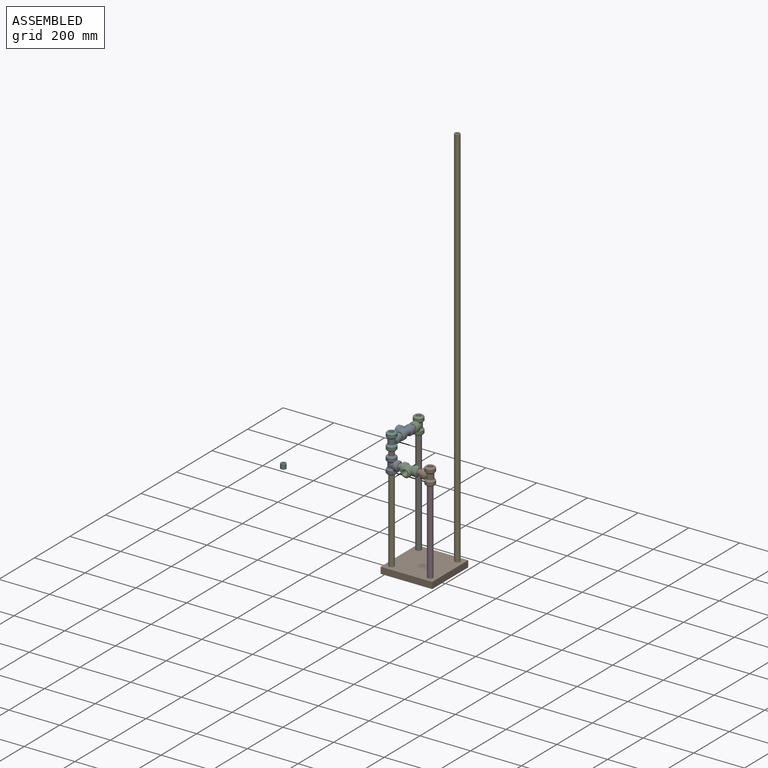
[diagram: assembled view]
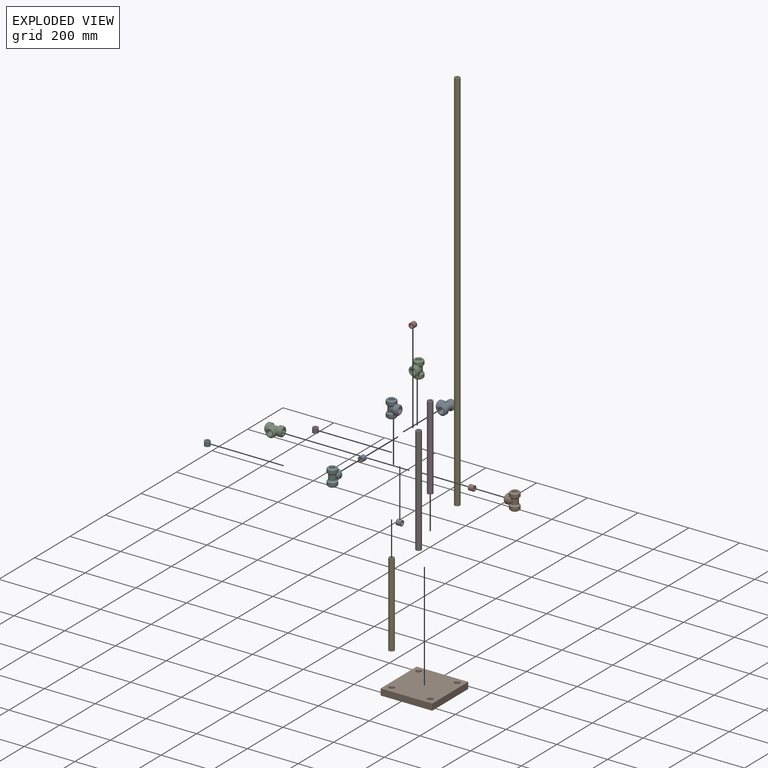
[diagram: exploded view]
GUIDED TOUR — MATED ASSEMBLY (Onshape document 9bde55a44d6da71420004861, AutoMate assembly 9bde55a44d6da71420004861_e16d18250e63d1b3d0beda56_8b6eeca9c53fa1a73b5b9f34_default)

This assembly has 17 components, labeled P0..P16 below (a component is one placed occurrence of a part; the same part can appear more than once), held together by 17 mates. A mate is a constraint between two components; its type names the relative motion it leaves free:
  FASTENED — locks the two components together rigidly (no relative motion),
  SLIDER — leaves translation along the listed axis free.
Axis/direction vectors are unit vectors and 'through' points are millimeter coordinates, both in the assembly's world frame.

MATES
  1. FASTENED "Fastened 10": P6 <-> P9, direction (0.000, 0.000, -1.000) through (575.70, 313.53, -287.02) mm
  2. SLIDER "Slider 2": P2 <-> P6, axis (0.000, 0.000, -1.000) through (575.70, 313.53, 125.73) mm
  3. FASTENED "Fastened 7": P3 <-> P8, direction (0.000, 0.000, -1.000) through (575.70, 161.13, 108.20) mm
  4. FASTENED "Fastened 5": P0 <-> P16, direction (0.000, -1.000, 0.000) through (575.70, 205.44, 159.27) mm
  5. FASTENED "Fastened 4": P1 <-> P11, direction (0.000, 0.000, -1.000) through (728.10, 161.13, 43.18) mm
  6. FASTENED "Fastened 2": P11 <-> P9, direction (0.000, 0.000, -1.000) through (728.10, 161.13, -287.02) mm
  7. SLIDER "Slider 3": P10 <-> P10, axis (0.000, -1.000, 0.000) through (650.67, 128.13, 76.18) mm
  8. FASTENED "Fastened 6": P15 <-> P0, direction (0.000, -1.000, 0.000) through (575.70, 271.44, 159.27) mm
  9. SLIDER "Slider 1": P16 <-> P5, axis (0.000, 1.000, 0.000) through (575.70, 186.39, 159.27) mm
  10. FASTENED "Fastened 12": P12 <-> P9, direction (0.000, 0.000, -1.000) through (728.10, 313.53, -287.02) mm
  11. FASTENED "Fastened 8": P5 <-> P3, direction (0.000, 0.000, -1.000) through (575.70, 161.13, 127.25) mm
  12. FASTENED "Fastened 5": P10 <-> P7, direction (1.000, 0.000, 0.000) through (683.67, 161.13, 76.18) mm
  13. FASTENED "Fastened 11": P2 <-> P6, direction (0.000, 0.000, -1.000) through (575.70, 313.53, 125.73) mm
  14. FASTENED "Fastened 1": P4 <-> P9, direction (0.000, 0.000, -1.000) through (575.70, 161.13, -287.02) mm
  15. FASTENED "Fastened 6": P14 <-> P10, direction (1.000, 0.000, 0.000) through (617.67, 161.13, 76.18) mm
  16. FASTENED "Fastened 9": P7 <-> P1, direction (-1.000, 0.000, 0.000) through (702.72, 161.13, 76.18) mm
  17. FASTENED "Fastened 3": P8 <-> P4, direction (0.000, 0.000, -1.000) through (575.70, 161.13, 43.18) mm

ASSEMBLY ORDER
  1. P6 — the base component [order verified]
  2. P2 [order verified]
  3. P15 [order verified]
  4. P8 [order verified]
  5. P14 [order verified]
  6. P4 [order verified]
  7. P0 [order verified]
  8. P16 [order verified]
  9. P10 [order verified]
  10. P11 [order verified]
  11. P7 [order verified]
  12. P1 [order verified]
  13. P3 [order verified]
  14. P5 [order verified]
  15. P12 [order verified]
  16. P9 [order verified]
  17. P13 [order verified]
(P2, P14, P15 verified with a relaxed clearance tolerance: the source model stores slight part interference there.)
Order-tag legend:
  [order verified] — this step's position reverses a verified removal order: the component was checked to insert without passing through the ones already placed.

Of the 17 components, 1 carries the full construction recipe — the FeatureScript program that regenerates the part's solid from scratch; the rest are supplied as boundary geometry only.
Because this assembly has more than 12 components, the tour below covers the 12 most significant ones individually (every recipe-attached component first, then the largest by part volume), in assembly order; the remaining 5 are summarized together in a grouped section at the end.
Each toured component is shown spotlighted twice — in the assembled view, then in the exploded view, where a leader line traces a displaced component back to its assembled socket (saturated green if recipe-attached, orange if geometry-only; every other component desaturated gray) — followed by its recipe or geometry summary and the mates that hold it.
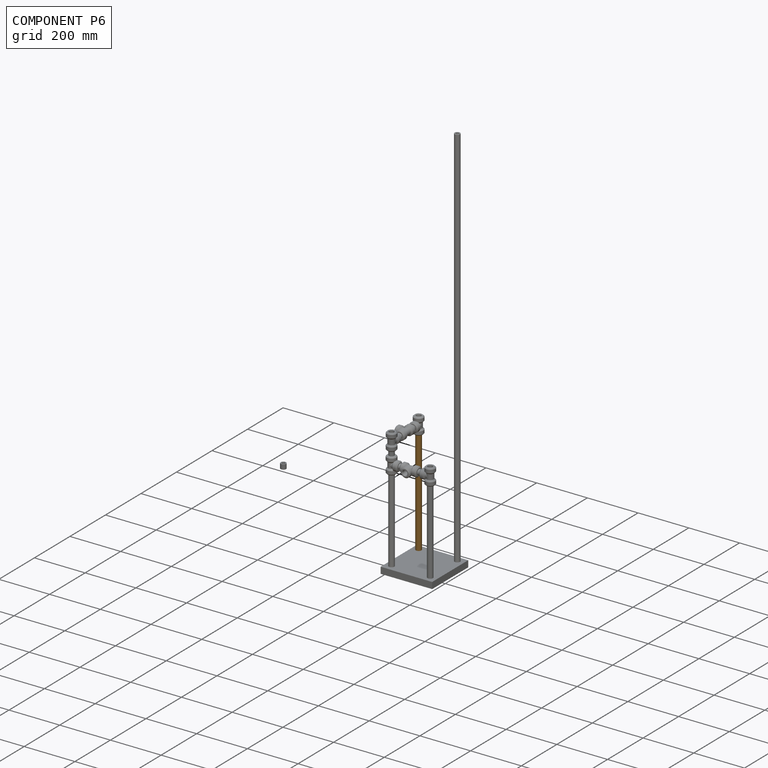
[diagram: component P6 — assembled]
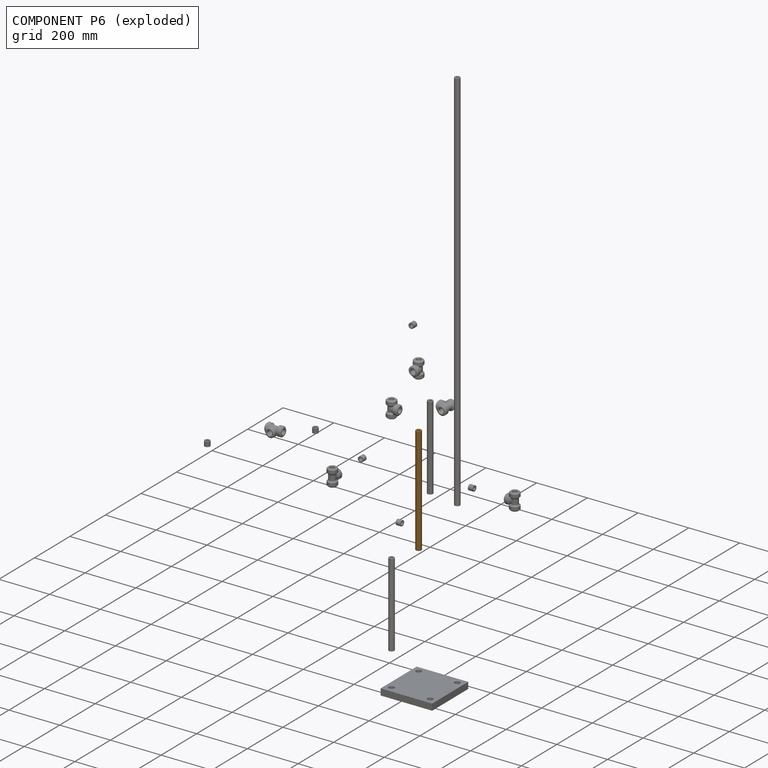
[diagram: component P6 — exploded]
COMPONENT P6 — geometry summary (no construction recipe available for this part):
  bounding box: 425.5 x 21.4 x 21.4 mm
  B-rep topology: 1 solid, 4 faces, 12 edges
  volume: 99579 mm^3 (51% of its bounding box)
  symmetry: 2-fold rotationally symmetric about the x axis; 2-fold rotationally symmetric about the y axis; revolution-symmetric about the z axis through its bounding-box center; mirror-symmetric across its x mid-plane, y mid-plane, z mid-plane
Held by: FASTENED mate "Fastened 10" to P9; SLIDER mate "Slider 2" to P2; FASTENED mate "Fastened 11" to P2.
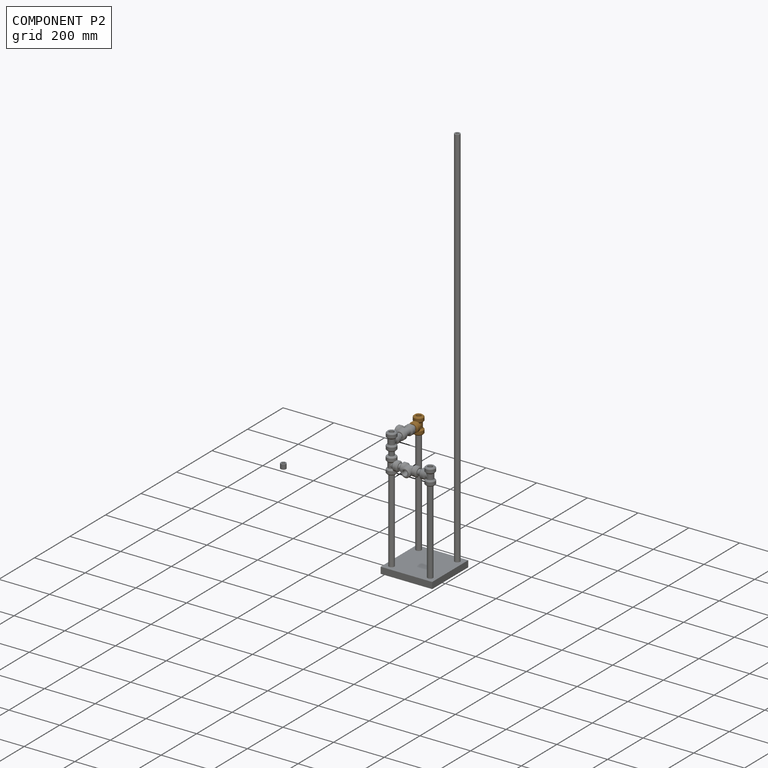
[diagram: component P2 — assembled]
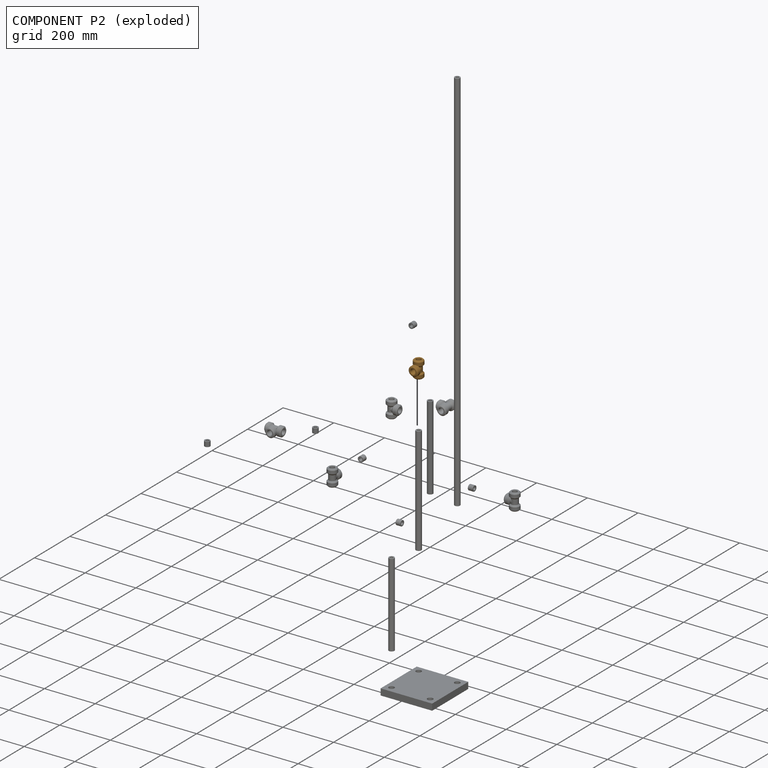
[diagram: component P2 — exploded]
COMPONENT P2 — geometry summary (no construction recipe available for this part):
  bounding box: 66.0 x 52.0 x 38.0 mm
  B-rep topology: 1 solid, 45 faces, 174 edges
  volume: 53101 mm^3 (41% of its bounding box)
  symmetry: 2-fold rotationally symmetric about the y axis; mirror-symmetric across its x mid-plane, z mid-plane
Held by: SLIDER mate "Slider 2" to P6; FASTENED mate "Fastened 11" to P6.
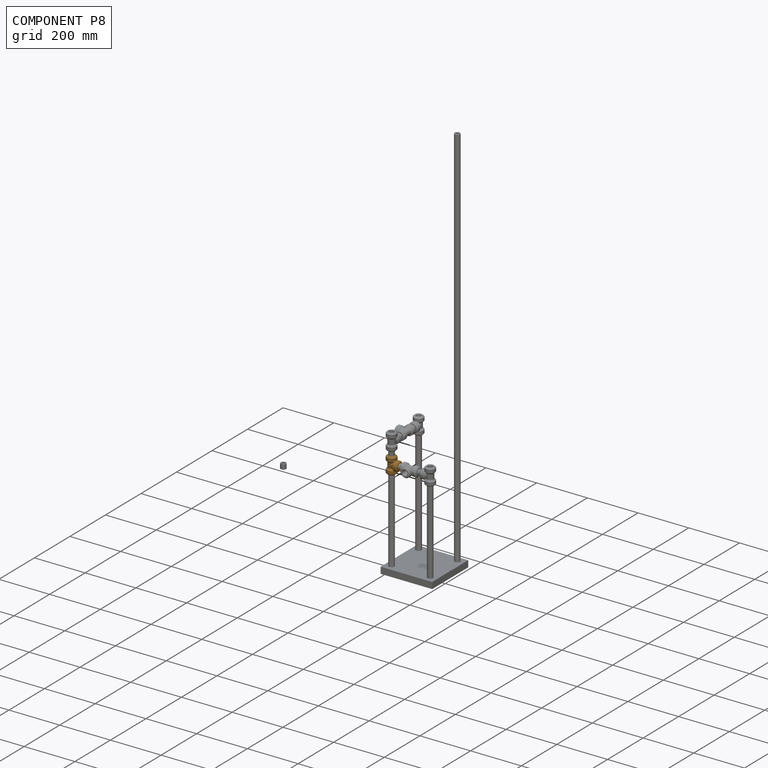
[diagram: component P8 — assembled]
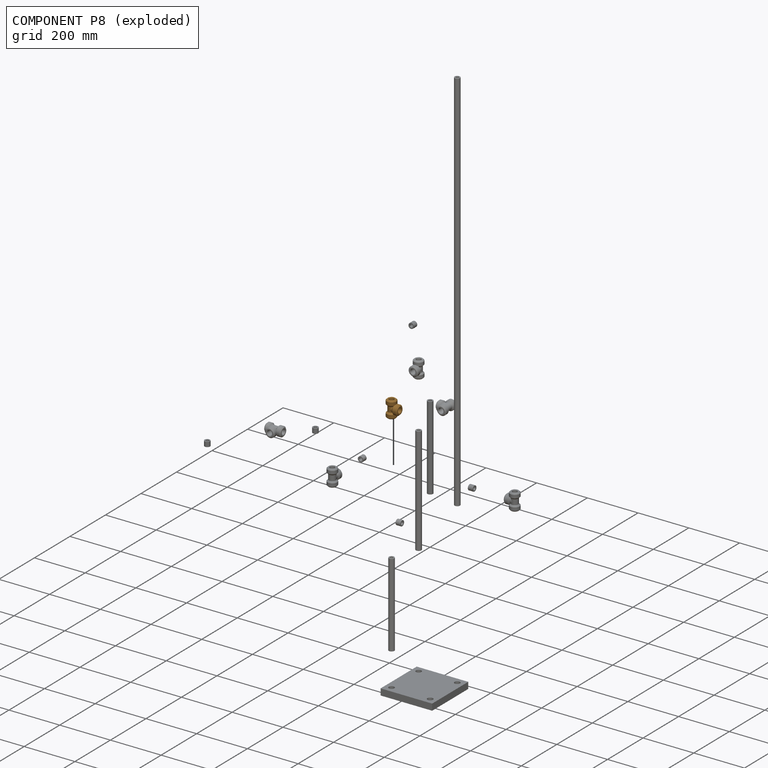
[diagram: component P8 — exploded]
COMPONENT P8 — geometry summary (no construction recipe available for this part):
  bounding box: 66.0 x 52.0 x 38.0 mm
  B-rep topology: 1 solid, 45 faces, 174 edges
  volume: 53101 mm^3 (41% of its bounding box)
  symmetry: 2-fold rotationally symmetric about the y axis; mirror-symmetric across its x mid-plane, z mid-plane
Held by: FASTENED mate "Fastened 7" to P3; FASTENED mate "Fastened 3" to P4.
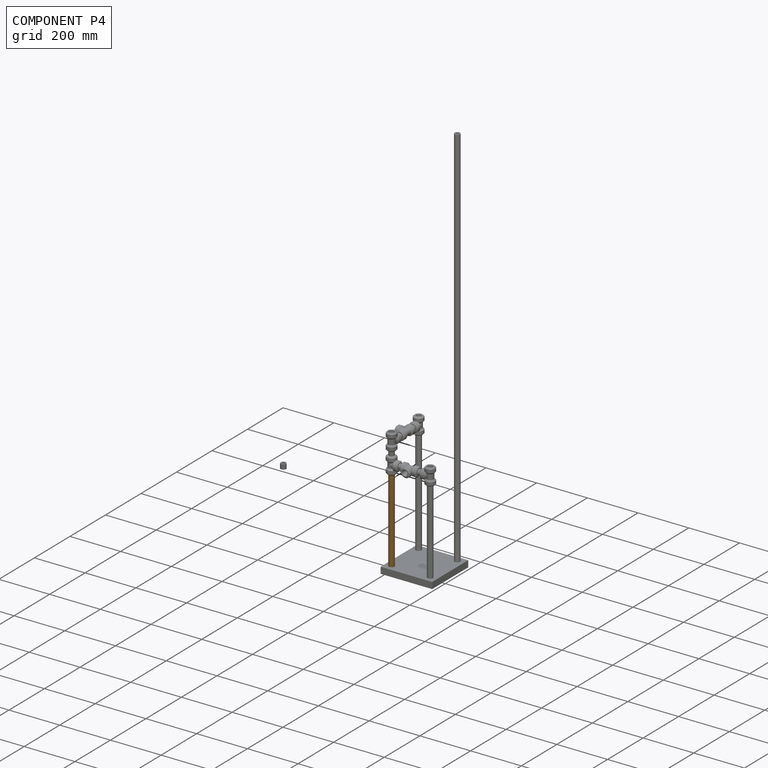
[diagram: component P4 — assembled]
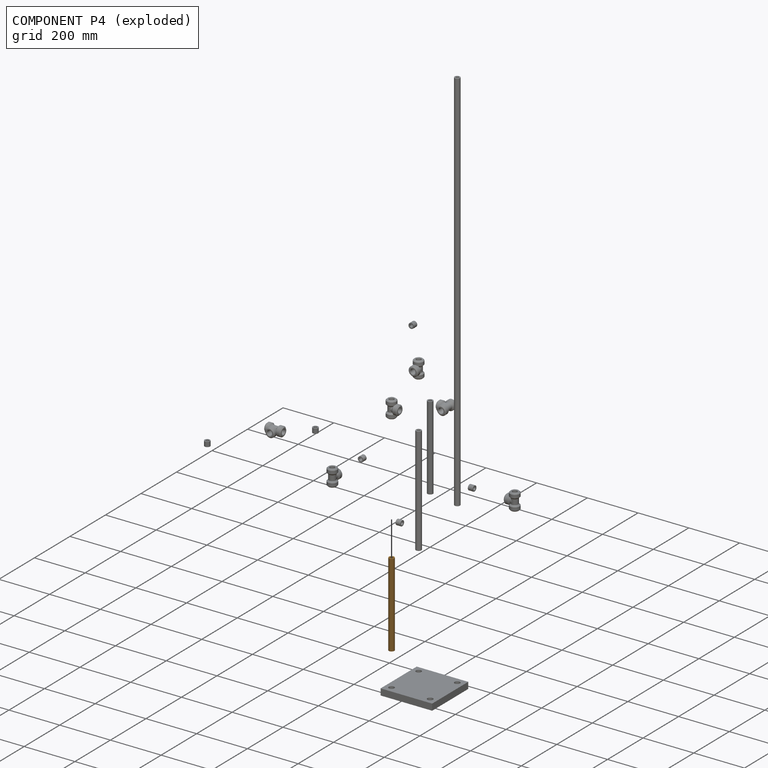
[diagram: component P4 — exploded]
COMPONENT P4 — geometry summary (no construction recipe available for this part):
  bounding box: 330.2 x 21.4 x 21.4 mm
  B-rep topology: 1 solid, 4 faces, 12 edges
  volume: 77285 mm^3 (51% of its bounding box)
  symmetry: 2-fold rotationally symmetric about the x axis; 2-fold rotationally symmetric about the y axis; revolution-symmetric about the z axis through its bounding-box center; mirror-symmetric across its x mid-plane, y mid-plane, z mid-plane
Held by: FASTENED mate "Fastened 1" to P9; FASTENED mate "Fastened 3" to P8.
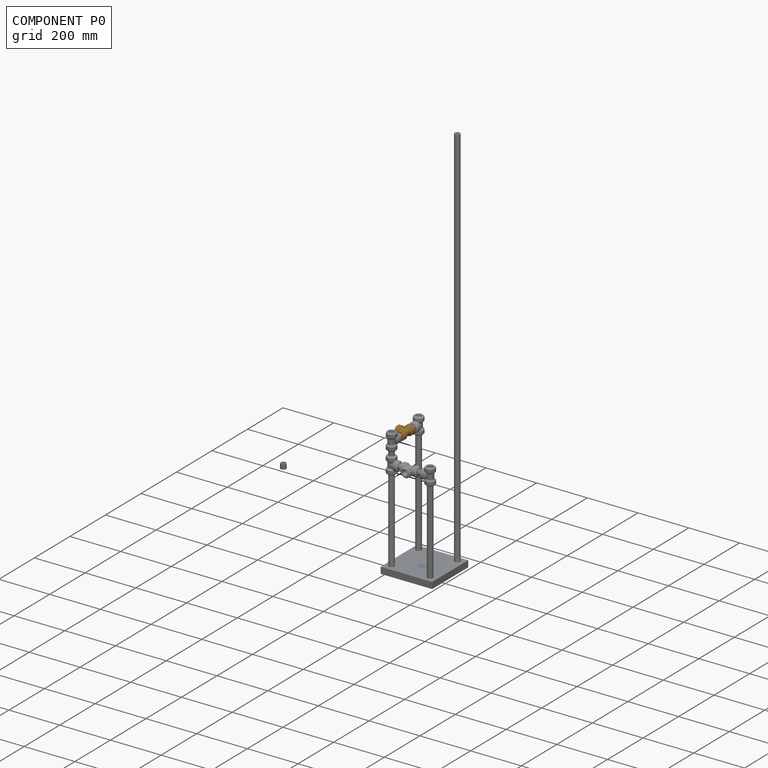
[diagram: component P0 — assembled]
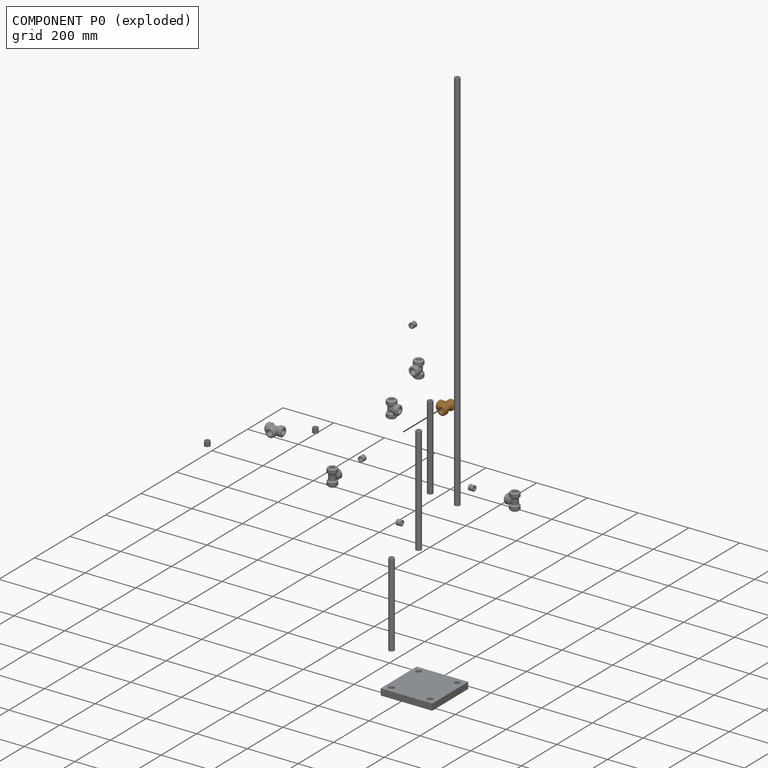
[diagram: component P0 — exploded]
COMPONENT P0 — geometry summary (no construction recipe available for this part):
  bounding box: 66.0 x 52.0 x 38.0 mm
  B-rep topology: 1 solid, 45 faces, 174 edges
  volume: 53101 mm^3 (41% of its bounding box)
  symmetry: 2-fold rotationally symmetric about the y axis; mirror-symmetric across its x mid-plane, z mid-plane
Held by: FASTENED mate "Fastened 5" to P16; FASTENED mate "Fastened 6" to P15.
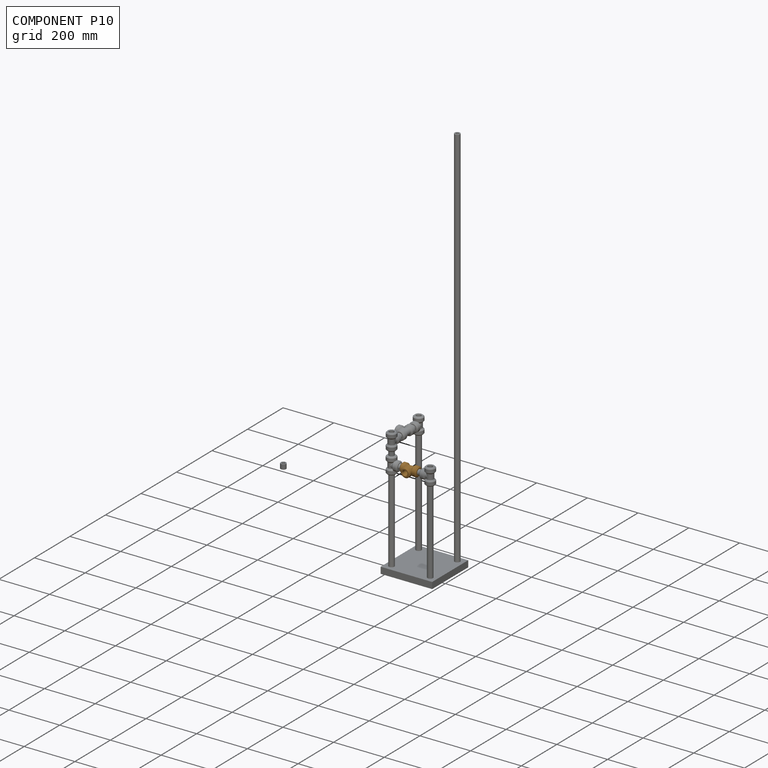
[diagram: component P10 — assembled]
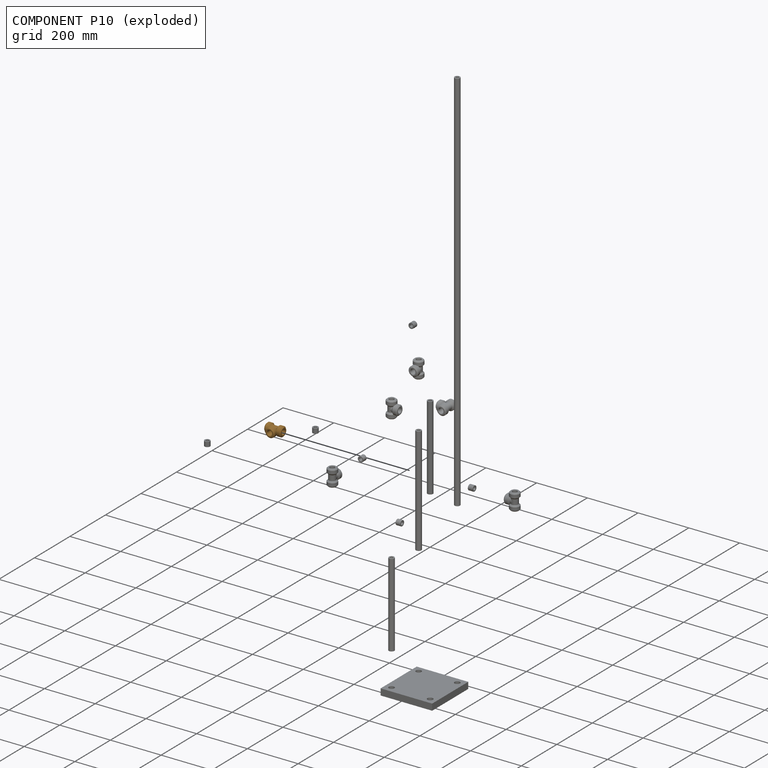
[diagram: component P10 — exploded]
COMPONENT P10 — geometry summary (no construction recipe available for this part):
  bounding box: 66.0 x 52.0 x 38.0 mm
  B-rep topology: 1 solid, 45 faces, 174 edges
  volume: 53101 mm^3 (41% of its bounding box)
  symmetry: 2-fold rotationally symmetric about the y axis; mirror-symmetric across its x mid-plane, z mid-plane
Held by: SLIDER mate "Slider 3" to P10; FASTENED mate "Fastened 5" to P7; FASTENED mate "Fastened 6" to P14.
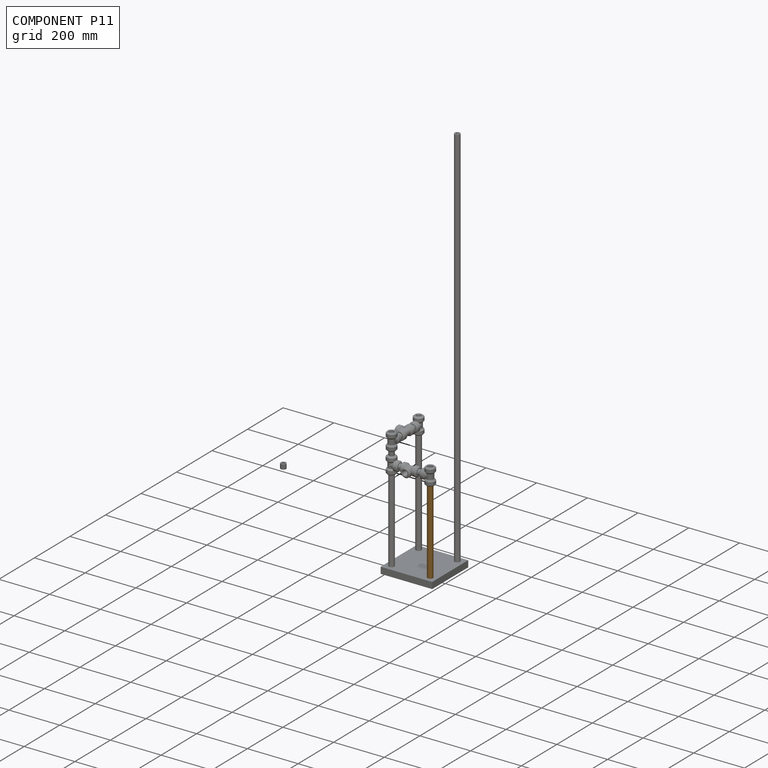
[diagram: component P11 — assembled]
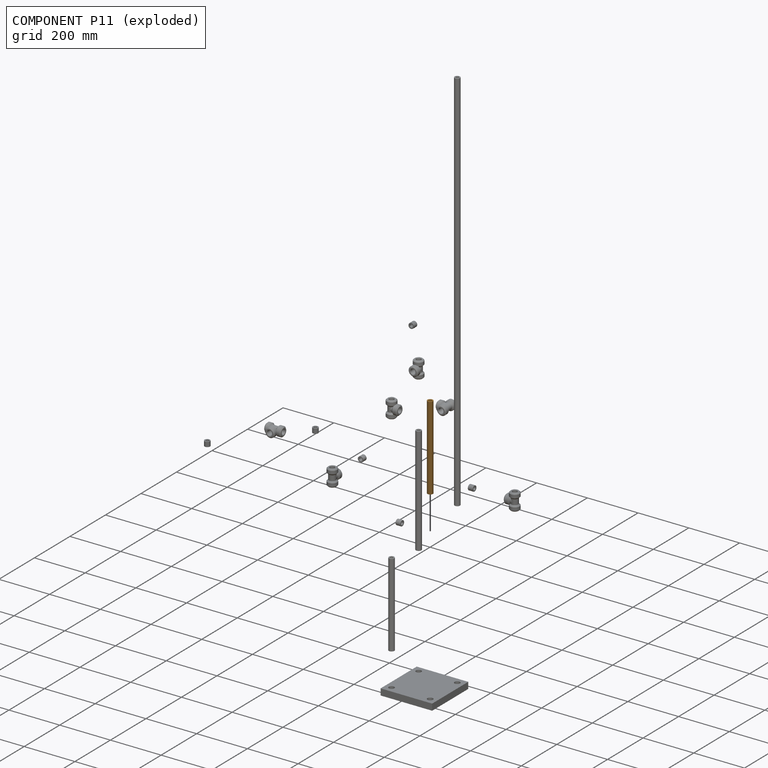
[diagram: component P11 — exploded]
COMPONENT P11 — geometry summary (no construction recipe available for this part):
  bounding box: 330.2 x 21.4 x 21.4 mm
  B-rep topology: 1 solid, 4 faces, 12 edges
  volume: 77285 mm^3 (51% of its bounding box)
  symmetry: 2-fold rotationally symmetric about the x axis; 2-fold rotationally symmetric about the y axis; revolution-symmetric about the z axis through its bounding-box center; mirror-symmetric across its x mid-plane, y mid-plane, z mid-plane
Held by: FASTENED mate "Fastened 4" to P1; FASTENED mate "Fastened 2" to P9.
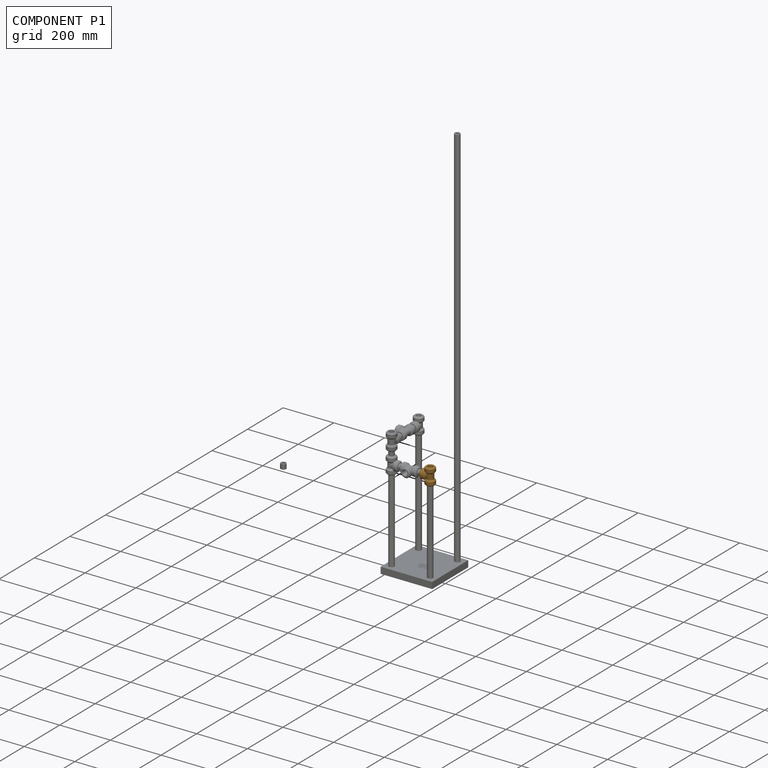
[diagram: component P1 — assembled]
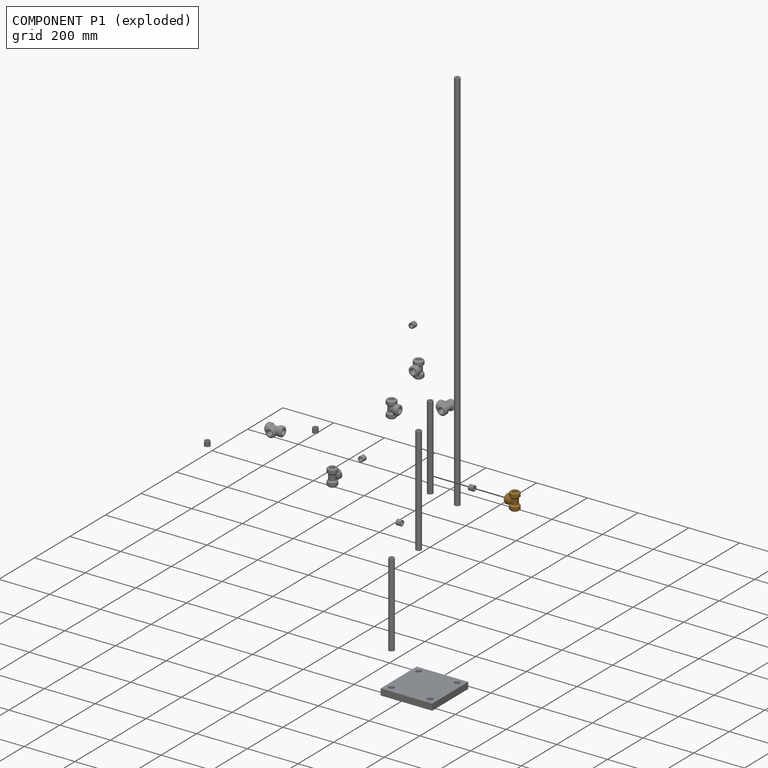
[diagram: component P1 — exploded]
COMPONENT P1 — geometry summary (no construction recipe available for this part):
  bounding box: 66.0 x 52.0 x 38.0 mm
  B-rep topology: 1 solid, 45 faces, 174 edges
  volume: 53101 mm^3 (41% of its bounding box)
  symmetry: 2-fold rotationally symmetric about the y axis; mirror-symmetric across its x mid-plane, z mid-plane
Held by: FASTENED mate "Fastened 4" to P11; FASTENED mate "Fastened 9" to P7.
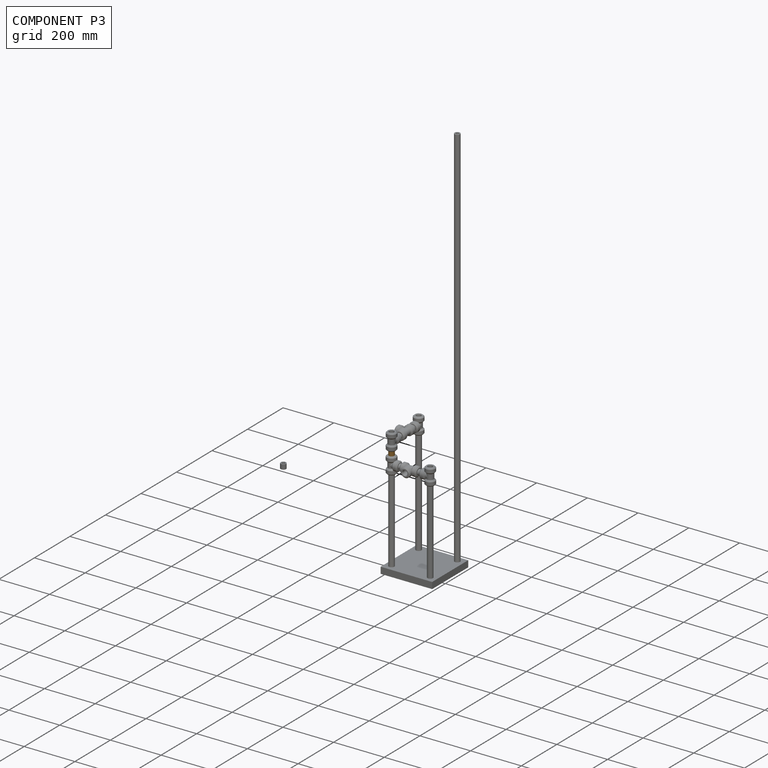
[diagram: component P3 — assembled]
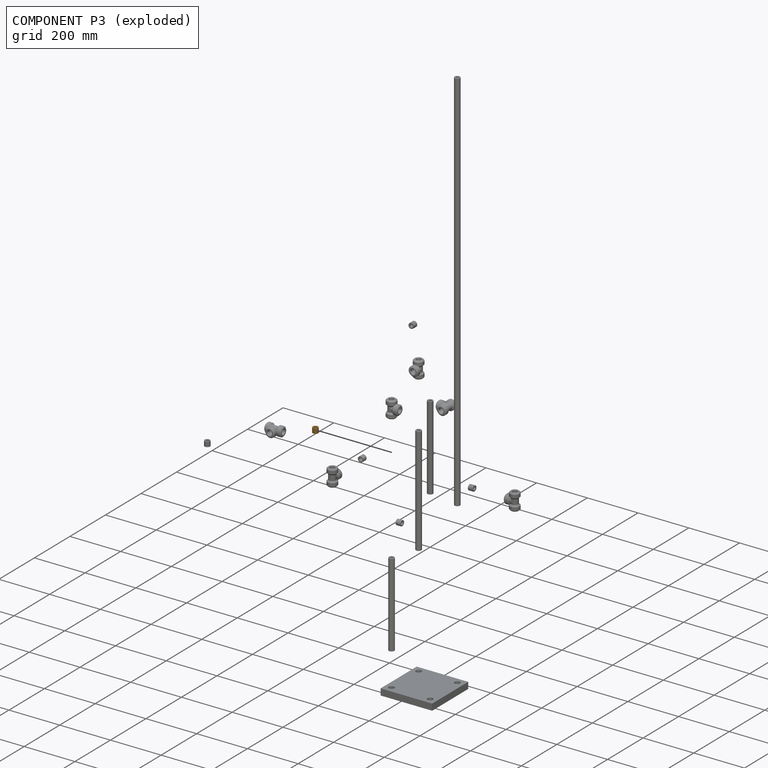
[diagram: component P3 — exploded]
COMPONENT P3 — geometry summary (no construction recipe available for this part):
  bounding box: 21.4 x 21.4 x 19.1 mm
  B-rep topology: 1 solid, 4 faces, 12 edges
  volume: 4459 mm^3 (51% of its bounding box)
  symmetry: 2-fold rotationally symmetric about the x axis; 2-fold rotationally symmetric about the y axis; revolution-symmetric about the z axis through its bounding-box center; mirror-symmetric across its x mid-plane, y mid-plane, z mid-plane
Held by: FASTENED mate "Fastened 7" to P8; FASTENED mate "Fastened 8" to P5.
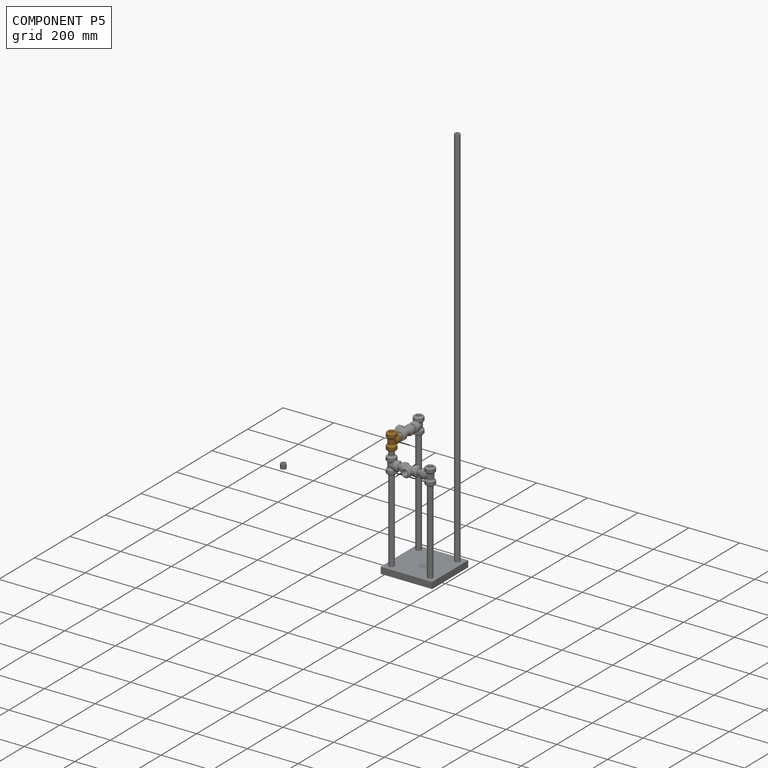
[diagram: component P5 — assembled]
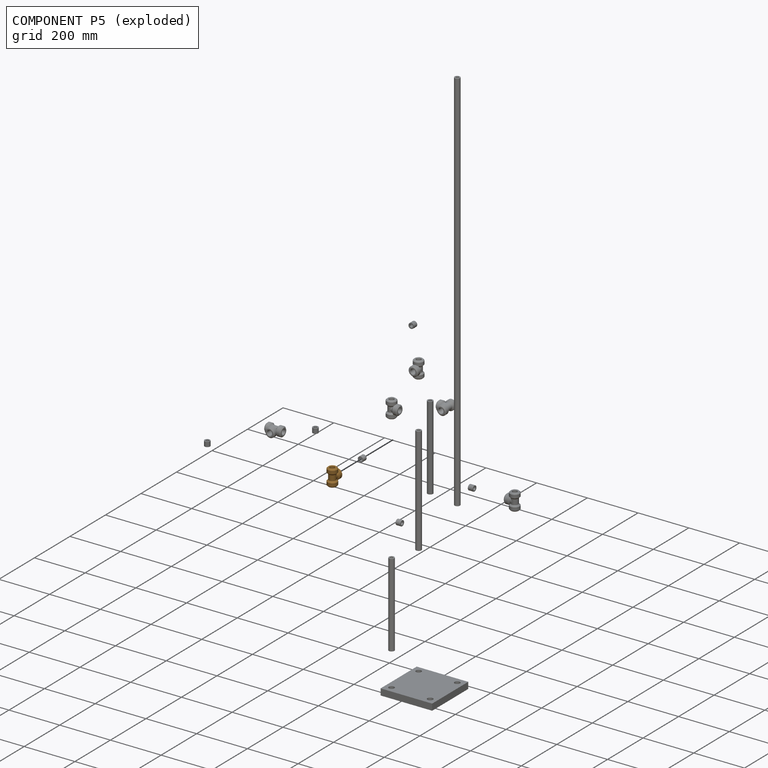
[diagram: component P5 — exploded]
COMPONENT P5 — geometry summary (no construction recipe available for this part):
  bounding box: 66.0 x 52.0 x 38.0 mm
  B-rep topology: 1 solid, 45 faces, 174 edges
  volume: 53101 mm^3 (41% of its bounding box)
  symmetry: 2-fold rotationally symmetric about the y axis; mirror-symmetric across its x mid-plane, z mid-plane
Held by: SLIDER mate "Slider 1" to P16; FASTENED mate "Fastened 8" to P3.
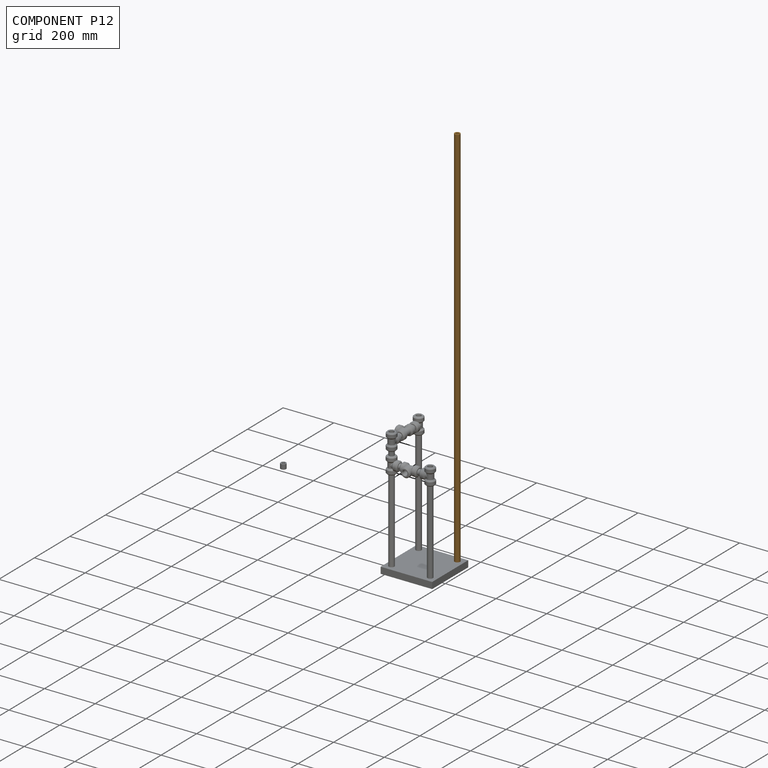
[diagram: component P12 — assembled]
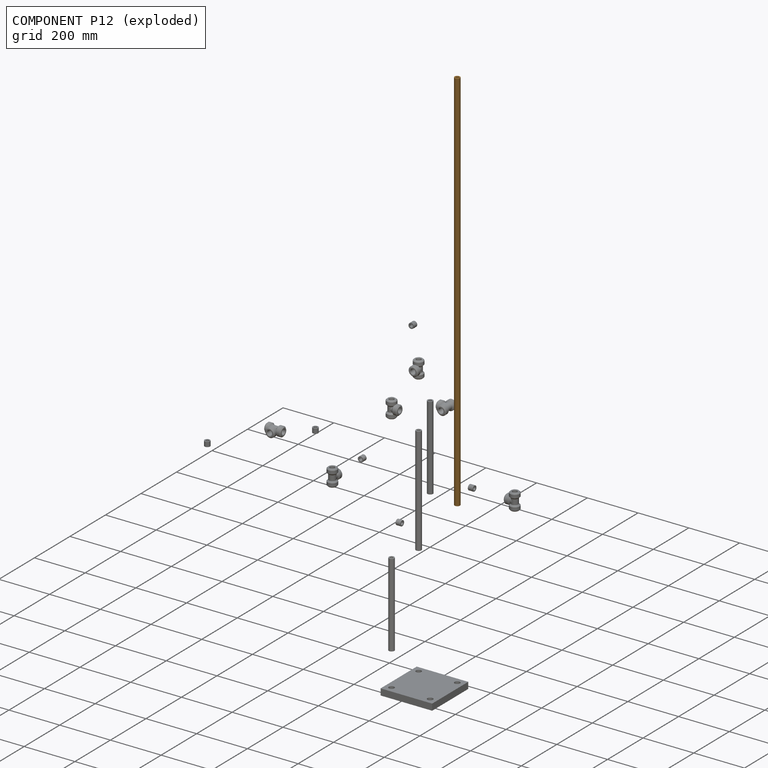
[diagram: component P12 — exploded]
COMPONENT P12 — geometry summary (no construction recipe available for this part):
  bounding box: 1524.0 x 21.4 x 21.4 mm
  B-rep topology: 1 solid, 4 faces, 12 edges
  volume: 356700 mm^3 (51% of its bounding box)
  symmetry: 2-fold rotationally symmetric about the x axis; 2-fold rotationally symmetric about the y axis; revolution-symmetric about the z axis through its bounding-box center; mirror-symmetric across its x mid-plane, y mid-plane, z mid-plane
Held by: FASTENED mate "Fastened 12" to P9.
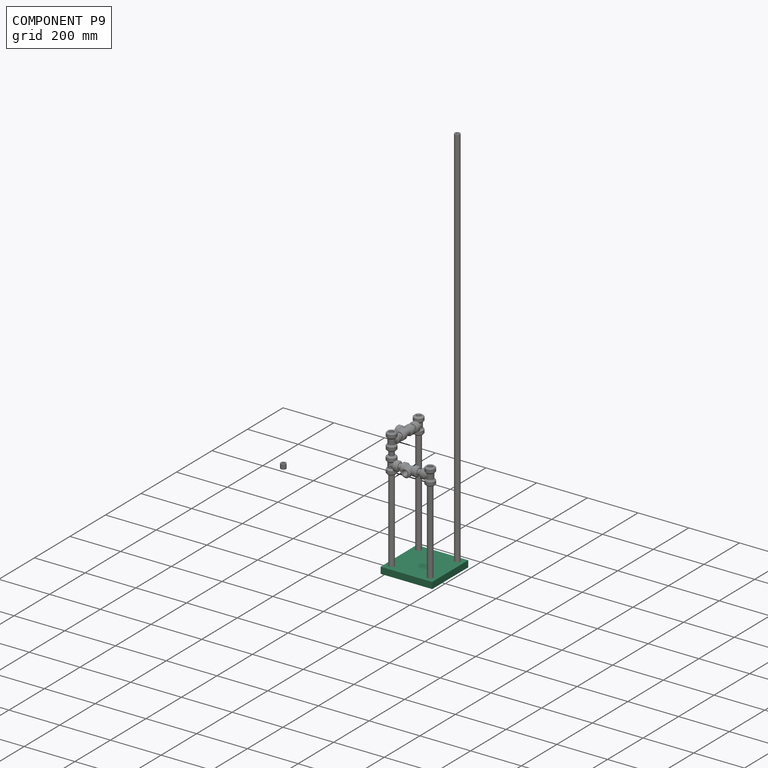
[diagram: component P9 — assembled]
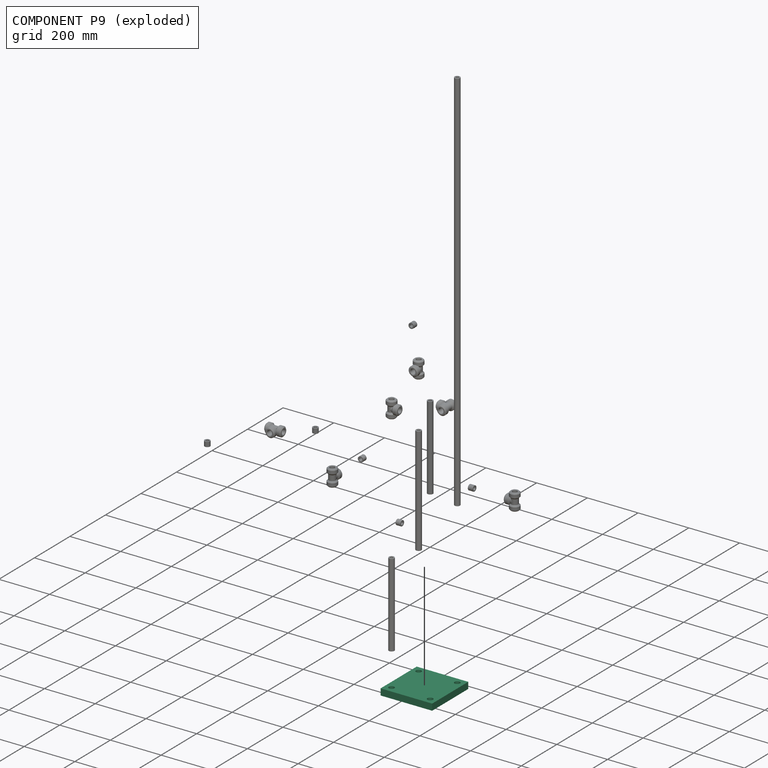
[diagram: component P9 — exploded]
COMPONENT P9 — recipe-attached (CADFS 00391281, mesh-verified: the recipe's output STEP matches this component's geometry to below the mesh-comparison resolution (tessellation chordal tolerance ~0.433 mm)).
Held by: FASTENED mate "Fastened 10" to P6; FASTENED mate "Fastened 2" to P11; FASTENED mate "Fastened 12" to P12; FASTENED mate "Fastened 1" to P4.
Construction recipe (FeatureScript — the CAD program that rebuilds this solid; sketch coordinates are in the units given by the * unit suffixes, e.g. mm):

FeatureScript 1511;
import(path : "onshape/std/geometry.fs", version : "1511.0");
import(path : "onshape/std/common.fs", version : "1511.0");
const mm = millimeter;
const VERTEX = EntityType.VERTEX;
const EDGE = EntityType.EDGE;
const FACE = EntityType.FACE;
const BODY = EntityType.BODY;
function v(x, y){return vector(x, y);}
function OD(order){return orderDisambiguation(order);}
function OSD(set){return originalSetDisambiguation(set);}
function TD(topology){return topologyDisambiguation(topology);}
function TDD(query){return trueDependencyDisambiguation(query);}
function sQuery(a, b, c) {return sketchEntityQuery(a, b, c);}

annotation { "Feature Type Name" : "Feature", "Feature Type Description" : "" }
export const myFeature = defineFeature(function(context is Context, id is Id, definition is map)
    precondition{}
    {
        {
            var Q0;
            Q0=qCreatedBy(makeId("Top.planeOp"),FACE);
            var sketch = newSketch(context, id + "F0", { "sketchPlane" : qUnion([Q0])});
            skLineSegment(sketch, "E0.bottom", {"start": v(-101.6, 101.6) * mm, "end": v(101.6, 101.6) * mm});
            skLineSegment(sketch, "E0.top", {"start": v(-101.6, -101.6) * mm, "end": v(101.6, -101.6) * mm});
            skLineSegment(sketch, "E0.left", {"start": v(-101.6, 101.6) * mm, "end": v(-101.6, -101.6) * mm});
            skLineSegment(sketch, "E0.right", {"start": v(101.6, 101.6) * mm, "end": v(101.6, -101.6) * mm});
            skPoint(sketch, "E0.middle", {"position": v(0, 0) * mm});
            skCircle(sketch, "E1", {"center": v(-76.2, 76.2) * mm, "radius": 10.72 * mm});
            skCircle(sketch, "E2.MirrorC", {"center": v(76.2, 76.2) * mm, "radius": 10.72 * mm});
            skCircle(sketch, "E3.MirrorC", {"center": v(76.2, -76.2) * mm, "radius": 10.72 * mm});
            skCircle(sketch, "E4.MirrorC", {"center": v(-76.2, -76.2) * mm, "radius": 10.72 * mm});
            skSolve(sketch);
        }
        {
            var Q0;
            Q0=makeQuery(id+"F0.imprint","IMPRINT",FACE,{"disambiguationData":[TD([[makeQuery(id+"F0.imprint","IMPRINT",EDGE,{"derivedFrom":sQuery(id+"F0.wireOp",EDGE,"E0.bottom")}),-1.0]])]});
            extrude(context, id + "F1", {"entities" : qUnion([Q0]), "depth" : 25.4 * mm});
        }
    });
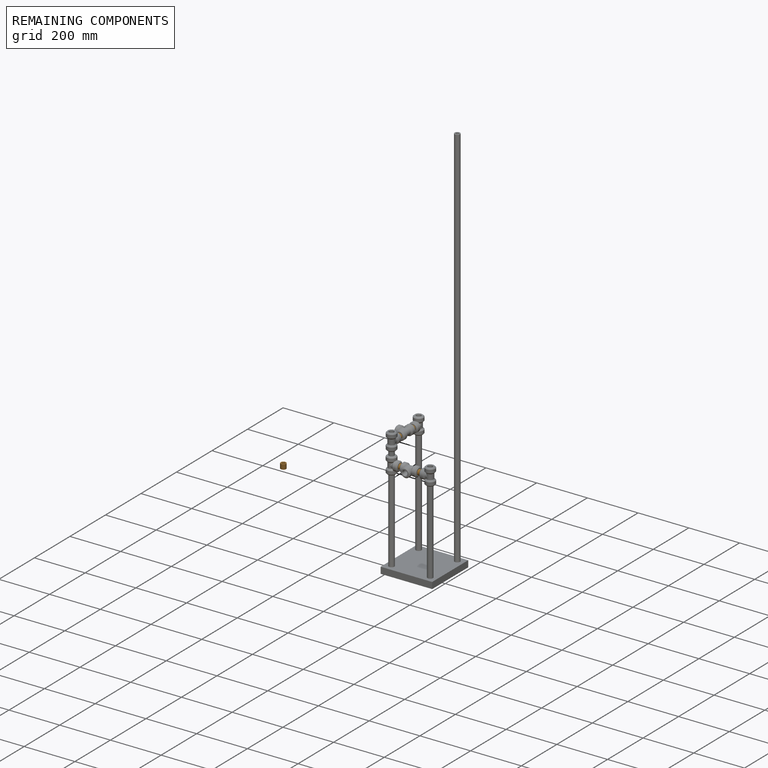
[diagram: remaining components — assembled]
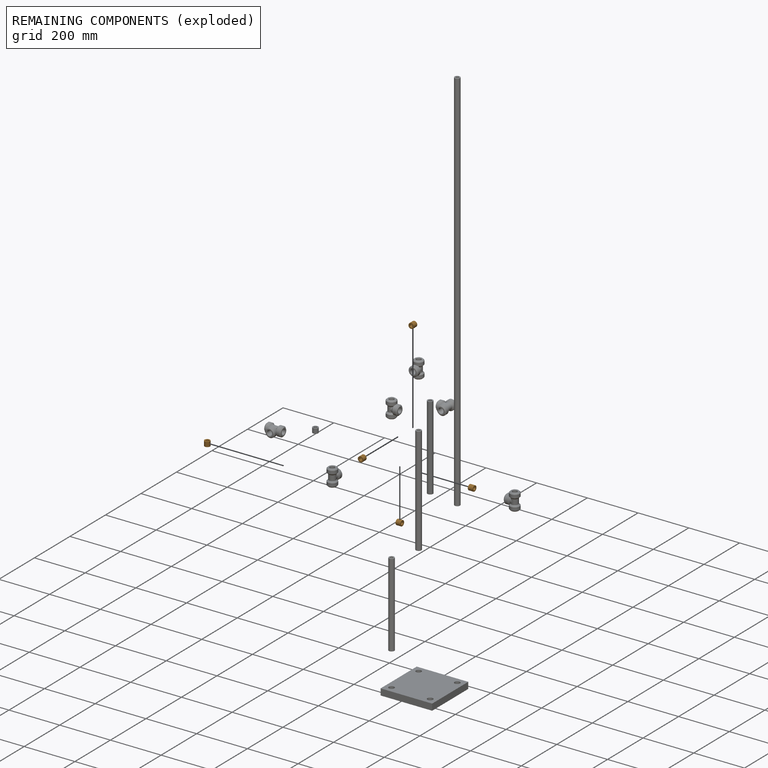
[diagram: remaining components — exploded]
REMAINING COMPONENTS (grouped) — the 5 components below fall outside the per-component tour by the significance rule stated above; both spotlight views highlight the whole group.
  P15: bounding box 21.4 x 21.4 x 19.1 mm, volume 4459 mm^3. Held by: FASTENED mate "Fastened 6" to P0.
  P14: bounding box 21.4 x 21.4 x 19.1 mm, volume 4459 mm^3. Held by: FASTENED mate "Fastened 6" to P10.
  P16: bounding box 21.4 x 21.4 x 19.1 mm, volume 4459 mm^3. Held by: FASTENED mate "Fastened 5" to P0; SLIDER mate "Slider 1" to P5.
  P7: bounding box 21.4 x 21.4 x 19.1 mm, volume 4459 mm^3. Held by: FASTENED mate "Fastened 5" to P10; FASTENED mate "Fastened 9" to P1.
  P13: bounding box 21.4 x 21.4 x 19.1 mm, volume 4459 mm^3. Held by: no mates (free).
PROVENANCE & LICENSES
Assembly (occurrences, transforms, mates, per-part STEP geometry): AutoMate dataset, Zenodo record 7776208, CC0.
Construction recipes: CADFS (HuggingFace VladPyatov/CADFS, CC-BY-4.0, layered over the ABC dataset), FeatureScript reconstruction programs keyed by ABC model id.
Join: ABC meta listings map ABC model id -> Onshape documentId; within a shared document, parts are matched by geometric signature (bounding-box dims + volume at 0.1% relative tolerance, exact B-rep face/solid counts).
Verification: 1 of this assembly's 17 components carries a recipe attachment, and every attachment is mesh-verified: the CADFS STEP and the AutoMate member STEP were compared as meshes in their shared local frame (symmetric sampled-point-to-mesh distance); worst across the 1 attachment: below the mesh-comparison resolution (tessellation chordal tolerance ~0.433 mm) on a 288 mm part.
Renders: orthographic iso camera (az 35 / el 25); the floor grid conveys scale (grid pitch printed in each image; no ruler). In the exploded view each component is displaced by its stored offset vector: the offsets alone carry the explosion direction (mate normal/axis signs are not orientation cues and do not encode it), and separation distances are assigned per mate-chain, not proportionally to assembly-order depth.
